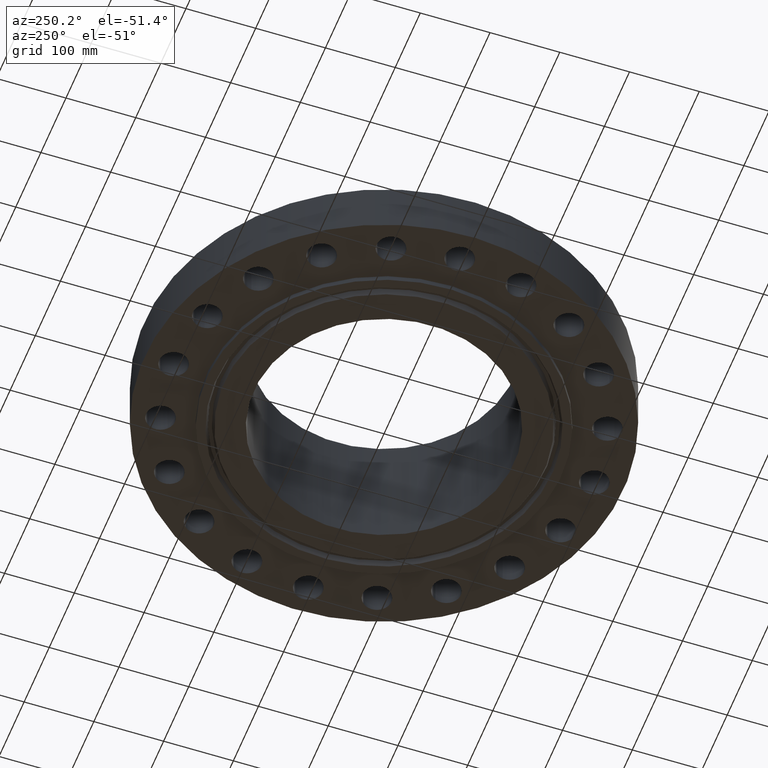
[diagram: clean part render]
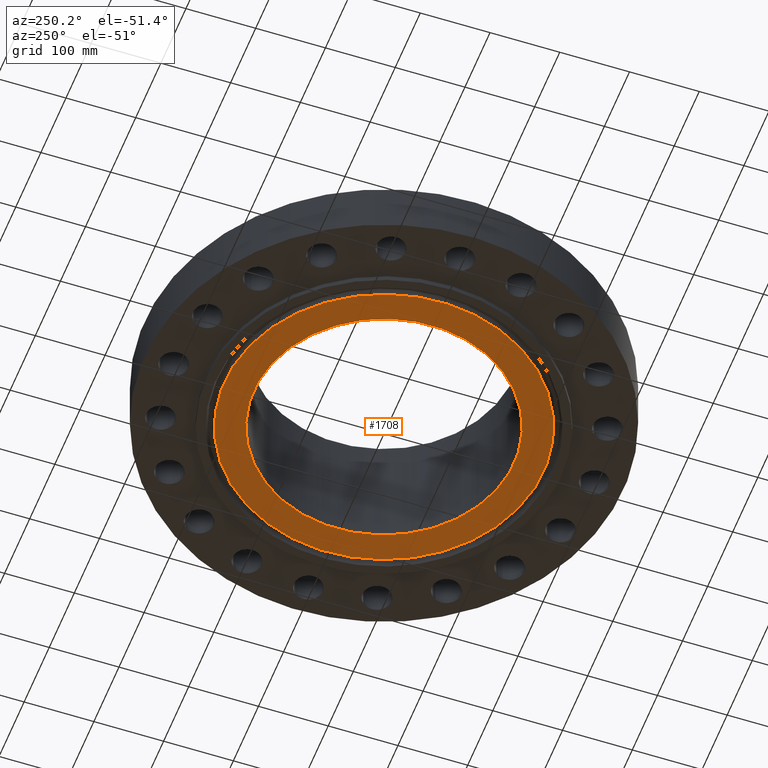
[diagram: same view with one face highlighted and labeled with its STEP entity id]
A machine part, auxiliary view. The second image highlights one B-rep face of the part: STEP entity #1708.
In plain terms, the highlighted planar face has unit normal (0, 0, -1).
Its self-contained STEP definition (entity closure, byte-faithful):
#363=AXIS2_PLACEMENT_3D('Circle Axis2P3D',#361,#362,$) ;
#387=AXIS2_PLACEMENT_3D('Circle Axis2P3D',#385,#386,$) ;
#1661=AXIS2_PLACEMENT_3D('Plane Axis2P3D',#1658,#1659,#1660) ;
#1688=AXIS2_PLACEMENT_3D('Circle Axis2P3D',#1686,#1687,$) ;
#1697=AXIS2_PLACEMENT_3D('Circle Axis2P3D',#1695,#1696,$) ;
#358=CARTESIAN_POINT('Vertex',(3.52090115552,6.44496633455,-0.313000000001)) ;
#361=CARTESIAN_POINT('Axis2P3D Location',(0.,0.,-0.313000000001)) ;
#365=CARTESIAN_POINT('Vertex',(-3.52090115552,-6.44496633455,-0.313000000001)) ;
#385=CARTESIAN_POINT('Axis2P3D Location',(0.,0.,-0.313000000001)) ;
#1658=CARTESIAN_POINT('Axis2P3D Location',(0.,7.34400000003,-0.313000000001)) ;
#1686=CARTESIAN_POINT('Axis2P3D Location',(2.23792987641E-015,-1.1189649382E-015,-0.313000000001)) ;
#1690=CARTESIAN_POINT('Vertex',(-4.3222609433,7.91184558675,-0.313000000001)) ;
#1692=CARTESIAN_POINT('Vertex',(4.3222609433,-7.91184558675,-0.313000000001)) ;
#1695=CARTESIAN_POINT('Axis2P3D Location',(-2.23792987641E-015,0.,-0.313000000001)) ;
#362=DIRECTION('Axis2P3D Direction',(0.,0.,-0.0393700787402)) ;
#386=DIRECTION('Axis2P3D Direction',(0.,0.,-0.0393700787402)) ;
#1659=DIRECTION('Axis2P3D Direction',(0.,0.,-0.0393700787402)) ;
#1660=DIRECTION('Axis2P3D XDirection',(0.0393700787402,0.,0.)) ;
#1687=DIRECTION('Axis2P3D Direction',(0.,0.,-0.0393700787402)) ;
#1696=DIRECTION('Axis2P3D Direction',(0.,0.,-0.0393700787402)) ;
#1701=ORIENTED_EDGE('',*,*,#1694,.T.) ;
#1702=ORIENTED_EDGE('',*,*,#1699,.T.) ;
#1705=ORIENTED_EDGE('',*,*,#367,.F.) ;
#1706=ORIENTED_EDGE('',*,*,#389,.F.) ;
#1707=FACE_BOUND('',#1704,.T.) ;
#1708=ADVANCED_FACE('PartBody',(#1703,#1707),#1662,.T.) ;
#364=CIRCLE('generated circle',#363,7.34400000003) ;
#388=CIRCLE('generated circle',#387,7.34400000003) ;
#1689=CIRCLE('generated circle',#1688,9.01550000004) ;
#1698=CIRCLE('generated circle',#1697,9.01550000004) ;
#367=EDGE_CURVE('',#359,#366,#364,.T.) ;
#389=EDGE_CURVE('',#366,#359,#388,.T.) ;
#1694=EDGE_CURVE('',#1691,#1693,#1689,.T.) ;
#1699=EDGE_CURVE('',#1693,#1691,#1698,.T.) ;
#1700=EDGE_LOOP('',(#1701,#1702)) ;
#1704=EDGE_LOOP('',(#1705,#1706)) ;
#1703=FACE_OUTER_BOUND('',#1700,.T.) ;
#1662=PLANE('',#1661) ;
#359=VERTEX_POINT('',#358) ;
#366=VERTEX_POINT('',#365) ;
#1691=VERTEX_POINT('',#1690) ;
#1693=VERTEX_POINT('',#1692) ;